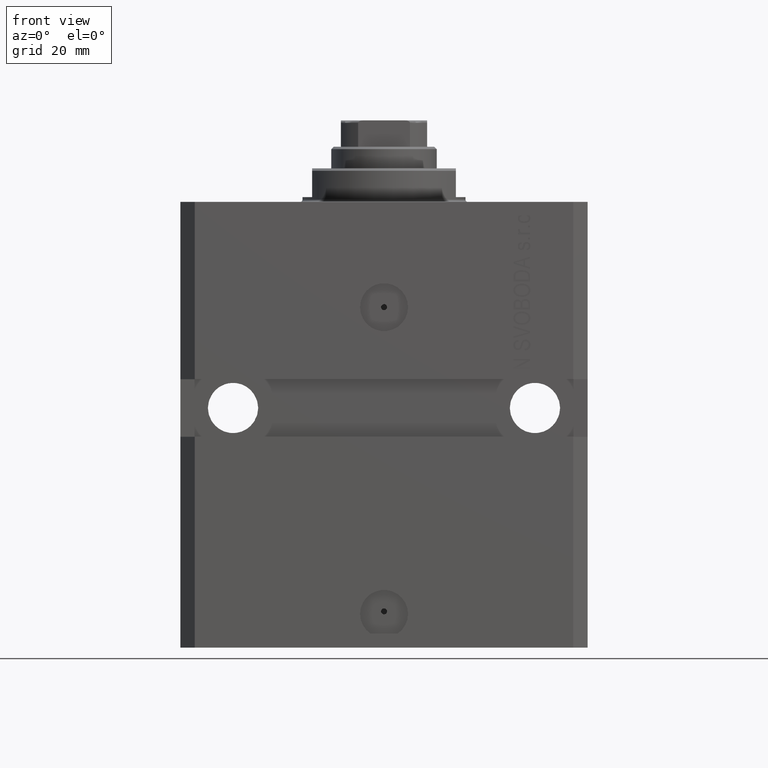
[diagram: clean part render]
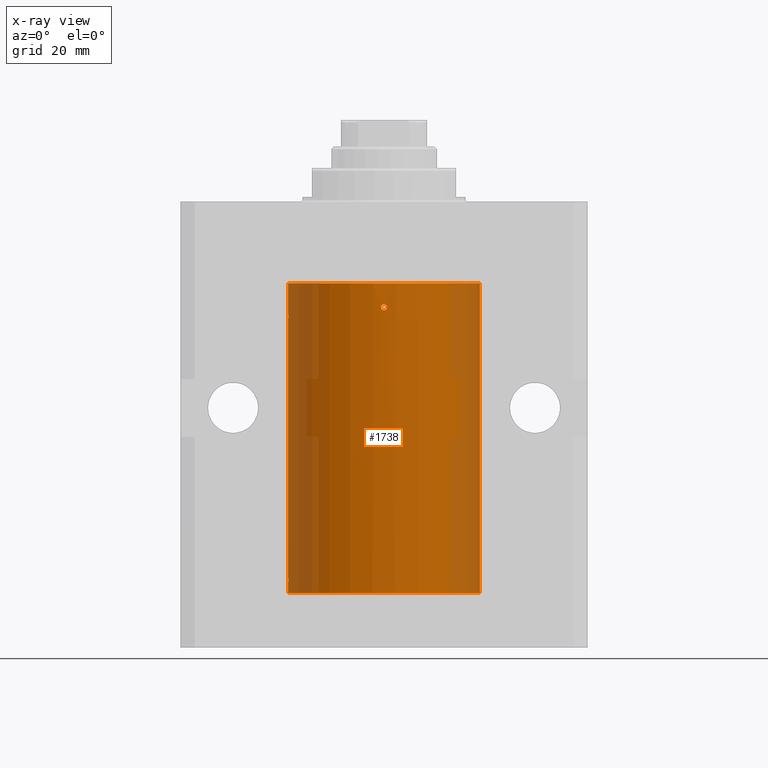
[diagram: x-ray — body ghosted, one internal face saturated and labeled with its STEP entity id]
A machine part, front view, then the same camera in x-ray: the body is ghosted and one INTERNAL B-rep face — a face not visible from any outside direction — is saturated and labeled: STEP entity #1738.
In plain terms, the highlighted cylindrical surface (partial cylindrical patch) has radius 20 mm, axis along (0, 0, 1).
Its self-contained STEP definition (entity closure, byte-faithful):
#353 = CARTESIAN_POINT ( 'NONE',  ( -0.6250000000033326675, -19.99023198964924219, -21.99999999999967315 ) ) ;
#1021 = EDGE_CURVE ( 'NONE', #21552, #28758, #17352, .T. ) ;
#1320 = CARTESIAN_POINT ( 'NONE',  ( 0.3265143537867915002, -19.99766736494331809, -21.44267231150418240 ) ) ;
#1738 = ADVANCED_FACE ( 'NONE', ( #40496, #2637 ), #16449, .F. ) ;
#1808 = DIRECTION ( 'NONE',  ( 1.000000000000000000, 0.000000000000000000, 0.000000000000000000 ) ) ;
#2523 = EDGE_CURVE ( 'NONE', #37911, #32984, #6993, .T. ) ;
#2637 = FACE_OUTER_BOUND ( 'NONE', #18495, .T. ) ;
#3057 = CARTESIAN_POINT ( 'NONE',  ( -19.99023630310506761, -0.6248620367829604838, -79.16538138329534036 ) ) ;
#3276 = CARTESIAN_POINT ( 'NONE',  ( -19.99257639367449357, -0.5569510432580352388, -79.32709448625169557 ) ) ;
#3592 = CARTESIAN_POINT ( 'NONE',  ( -20.00000000000000000, 2.449293598294706513E-15, -81.59999999999999432 ) ) ;
#4896 = VERTEX_POINT ( 'NONE', #8143 ) ;
#4953 = CARTESIAN_POINT ( 'NONE',  ( 0.5459793025363884889, -19.99257092108152634, -21.68496684531850249 ) ) ;
#5174 = CARTESIAN_POINT ( 'NONE',  ( -0.6249999999998574474, -19.99023198964934878, -21.83683113816865529 ) ) ;
#5308 = CARTESIAN_POINT ( 'NONE',  ( -19.99023630310506761, -0.6248620367829522682, -24.16538138329532259 ) ) ;
#5633 = CIRCLE ( 'NONE', #40389, 20.00000000000000000 ) ;
#6017 = CARTESIAN_POINT ( 'NONE',  ( -20.00000000000000000, -0.1651542110816439091, -78.37500000000001421 ) ) ;
#6050 = VECTOR ( 'NONE', #28290, 1000.000000000000000 ) ;
#6236 = CARTESIAN_POINT ( 'NONE',  ( -19.99767054355995555, -0.3263099029014857599, -79.55741108240768256 ) ) ;
#6271 = AXIS2_PLACEMENT_3D ( 'NONE', #36282, #40575, #1808 ) ;
#6993 = LINE ( 'NONE', #3592, #6050 ) ;
#7695 = CIRCLE ( 'NONE', #6271, 20.00000000000000000 ) ;
#8143 = CARTESIAN_POINT ( 'NONE',  ( -20.00000000000000000, 2.449293598294706513E-15, -17.00000000000000000 ) ) ;
#8641 = AXIS2_PLACEMENT_3D ( 'NONE', #23033, #16220, #36878 ) ;
#9702 = ORIENTED_EDGE ( 'NONE', *, *, #28779, .T. ) ;
#9876 = CARTESIAN_POINT ( 'NONE',  ( -0.6250000000001382228, -19.99023198964934167, -22.16313189841578080 ) ) ;
#10091 = EDGE_CURVE ( 'NONE', #35683, #4896, #12004, .T. ) ;
#10100 = CARTESIAN_POINT ( 'NONE',  ( -0.5574110886242996665, -19.99256263711735215, -22.32630989244538711 ) ) ;
#10129 = EDGE_CURVE ( 'NONE', #37911, #32339, #7695, .T. ) ;
#10706 = EDGE_CURVE ( 'NONE', #32984, #22352, #36727, .T. ) ;
#11163 = CARTESIAN_POINT ( 'NONE',  ( -20.00000000000000000, -2.867584836844214272E-15, -23.37500000000000000 ) ) ;
#11276 = VERTEX_POINT ( 'NONE', #25842 ) ;
#11803 = DIRECTION ( 'NONE',  ( 1.000000000000000000, 0.000000000000000000, 0.000000000000000000 ) ) ;
#12004 = LINE ( 'NONE', #43747, #41698 ) ;
#12120 = CARTESIAN_POINT ( 'NONE',  ( -20.00000000000000000, -1.124177324826063808E-14, -78.37500000000000000 ) ) ;
#12414 = CARTESIAN_POINT ( 'NONE',  ( -0.1628481006860607039, -20.00000180872260813, -21.37494212087287337 ) ) ;
#12545 = CARTESIAN_POINT ( 'NONE',  ( -20.00000000000010303, 3.580159278407742946E-13, -24.62500000000332889 ) ) ;
#12801 = CARTESIAN_POINT ( 'NONE',  ( -20.00000000000000355, -0.1631318982819177366, -79.62500000000015632 ) ) ;
#12996 = LINE ( 'NONE', #35161, #13647 ) ;
#13647 = VECTOR ( 'NONE', #42153, 1000.000000000000000 ) ;
#14160 = CARTESIAN_POINT ( 'NONE',  ( -0.1653813832397391104, -19.99999568866902067, -22.62486203736067125 ) ) ;
#15133 = CARTESIAN_POINT ( 'NONE',  ( -0.6250000000033326675, -19.99023198964924219, -21.99999999999967315 ) ) ;
#15291 = ORIENTED_EDGE ( 'NONE', *, *, #1021, .T. ) ;
#16220 = DIRECTION ( 'NONE',  ( -0.000000000000000000, -0.000000000000000000, 1.000000000000000000 ) ) ;
#16428 = CARTESIAN_POINT ( 'NONE',  ( 20.00000000000000000, 0.000000000000000000, -81.59999999999999432 ) ) ;
#16449 = CYLINDRICAL_SURFACE ( 'NONE', #8641, 20.00000000000000000 ) ;
#16616 = ORIENTED_EDGE ( 'NONE', *, *, #24021, .T. ) ;
#16667 = CARTESIAN_POINT ( 'NONE',  ( 0.6250000000000026645, -19.99023198964934522, -22.00000000000000000 ) ) ;
#17345 = CARTESIAN_POINT ( 'NONE',  ( 0.5570899181683264256, -19.99257333899569744, -22.32695694742785619 ) ) ;
#17352 = B_SPLINE_CURVE_WITH_KNOTS ( 'NONE', 3,
 ( #36227, #26007, #29188, #4953, #18760, #1320, #36009, #12414, #32603, #19431, #5174, #15133 ),
 .UNSPECIFIED., .F., .F.,
 ( 4, 2, 2, 2, 2, 4 ),
 ( 0.000000000000000000, 0.0002442693132668051579, 0.0004885386265336103158, 0.0009770772530672282210, 0.001465615879600846126, 0.001954154506134463815 ),
 .UNSPECIFIED. ) ;
#17938 = EDGE_LOOP ( 'NONE', ( #15291, #9702 ) ) ;
#18495 = EDGE_LOOP ( 'NONE', ( #39089, #25052, #21468, #38520, #16616, #36666, #40004, #32702 ) ) ;
#18760 = CARTESIAN_POINT ( 'NONE',  ( 0.4995363768272698679, -19.99384383563509360, -21.61563220462100432 ) ) ;
#19431 = CARTESIAN_POINT ( 'NONE',  ( -0.5585582113630487289, -19.99253968778482360, -21.67461956847272830 ) ) ;
#20279 = CARTESIAN_POINT ( 'NONE',  ( -20.00000000000000000, -1.124177324826063808E-14, -78.37500000000000000 ) ) ;
#21468 = ORIENTED_EDGE ( 'NONE', *, *, #10706, .T. ) ;
#21552 = VERTEX_POINT ( 'NONE', #25441 ) ;
#22352 = VERTEX_POINT ( 'NONE', #12120 ) ;
#22747 = CARTESIAN_POINT ( 'NONE',  ( -19.99767054355995555, -0.3263099029014763230, -24.55741108240767190 ) ) ;
#23033 = CARTESIAN_POINT ( 'NONE',  ( 0.000000000000000000, 0.000000000000000000, -81.59999999999999432 ) ) ;
#23926 = CARTESIAN_POINT ( 'NONE',  ( 0.3261666526553446133, -19.99767369487616264, -22.55755299038902706 ) ) ;
#24021 = EDGE_CURVE ( 'NONE', #25255, #35683, #26436, .T. ) ;
#24602 = CARTESIAN_POINT ( 'NONE',  ( -0.3270944962368909081, -19.99765679051705902, -22.55695103748945129 ) ) ;
#24864 = VECTOR ( 'NONE', #33466, 1000.000000000000000 ) ;
#25052 = ORIENTED_EDGE ( 'NONE', *, *, #2523, .T. ) ;
#25255 = VERTEX_POINT ( 'NONE', #32865 ) ;
#25441 = CARTESIAN_POINT ( 'NONE',  ( 0.6250000000000026645, -19.99023198964934522, -22.00000000000000000 ) ) ;
#25509 = CARTESIAN_POINT ( 'NONE',  ( 20.00000000000000000, 0.000000000000000000, -81.59999999999999432 ) ) ;
#25842 = CARTESIAN_POINT ( 'NONE',  ( 20.00000000000000000, 0.000000000000000000, -17.00000000000000000 ) ) ;
#26007 = CARTESIAN_POINT ( 'NONE',  ( 0.6250000000000028866, -19.99023198964935233, -21.91740418326171280 ) ) ;
#26258 = EDGE_CURVE ( 'NONE', #4896, #11276, #5633, .T. ) ;
#26436 = B_SPLINE_CURVE_WITH_KNOTS ( 'NONE', 3,
 ( #12545, #39979, #22747, #26838, #5308, #33423, #29329, #39755, #29786, #33200 ),
 .UNSPECIFIED., .F., .F.,
 ( 4, 2, 2, 2, 4 ),
 ( 0.001954154509844215938, 0.002442582466643772668, 0.002931010423443329831, 0.003419438380242886995, 0.003907866337042443725 ),
 .UNSPECIFIED. ) ;
#26838 = CARTESIAN_POINT ( 'NONE',  ( -19.99257639367449357, -0.5569510432580226933, -24.32709448625169557 ) ) ;
#26870 = CARTESIAN_POINT ( 'NONE',  ( -19.99255948581289033, -0.5575529953197770894, -78.67383335671266309 ) ) ;
#28006 = CARTESIAN_POINT ( 'NONE',  ( 0.6250000000000026645, -19.99023198964934522, -22.16515421183406076 ) ) ;
#28214 = EDGE_CURVE ( 'NONE', #22352, #25255, #12996, .T. ) ;
#28290 = DIRECTION ( 'NONE',  ( -0.000000000000000000, -0.000000000000000000, 1.000000000000000000 ) ) ;
#28758 = VERTEX_POINT ( 'NONE', #31416 ) ;
#28779 = EDGE_CURVE ( 'NONE', #28758, #21552, #39080, .T. ) ;
#29188 = CARTESIAN_POINT ( 'NONE',  ( 0.6087363597162602780, -19.99075850180857117, -21.83635608258754957 ) ) ;
#29329 = CARTESIAN_POINT ( 'NONE',  ( -19.99255948581289744, -0.5575529953197640998, -23.67383335671266309 ) ) ;
#29786 = CARTESIAN_POINT ( 'NONE',  ( -20.00000000000000000, -0.1651542110816374143, -23.37500000000000355 ) ) ;
#30738 = CARTESIAN_POINT ( 'NONE',  ( 0.1643369734423495987, -20.00000429769607280, -22.62513752632251851 ) ) ;
#31416 = CARTESIAN_POINT ( 'NONE',  ( -0.6250000000033326675, -19.99023198964924219, -21.99999999999967315 ) ) ;
#31462 = CARTESIAN_POINT ( 'NONE',  ( -20.00000000000000000, 2.449293598294706513E-15, -81.59999999999999432 ) ) ;
#31787 = DIRECTION ( 'NONE',  ( 0.000000000000000000, 0.000000000000000000, 1.000000000000000000 ) ) ;
#31998 = CARTESIAN_POINT ( 'NONE',  ( -20.00000000000010303, 3.580159286679549072E-13, -79.62500000000332534 ) ) ;
#32339 = VERTEX_POINT ( 'NONE', #25509 ) ;
#32603 = CARTESIAN_POINT ( 'NONE',  ( -0.3251162203622516289, -19.99769811469285230, -21.44128795971509405 ) ) ;
#32702 = ORIENTED_EDGE ( 'NONE', *, *, #44474, .F. ) ;
#32865 = CARTESIAN_POINT ( 'NONE',  ( -20.00000000000010303, 3.580159278407742946E-13, -24.62500000000332889 ) ) ;
#32984 = VERTEX_POINT ( 'NONE', #31998 ) ;
#33200 = CARTESIAN_POINT ( 'NONE',  ( -20.00000000000000000, -2.867584836844214272E-15, -23.37500000000000000 ) ) ;
#33423 = CARTESIAN_POINT ( 'NONE',  ( -19.99022768983530440, -0.6251375268965866372, -23.83566303088218064 ) ) ;
#33466 = DIRECTION ( 'NONE',  ( -0.000000000000000000, -0.000000000000000000, 1.000000000000000000 ) ) ;
#33676 = CARTESIAN_POINT ( 'NONE',  ( -19.99022768983530440, -0.6251375268966040677, -78.83566303088220195 ) ) ;
#35161 = CARTESIAN_POINT ( 'NONE',  ( -20.00000000000000000, 2.449293598294706513E-15, -81.59999999999999432 ) ) ;
#35683 = VERTEX_POINT ( 'NONE', #11163 ) ;
#36009 = CARTESIAN_POINT ( 'NONE',  ( 0.1632920704146597346, -19.99999818881353164, -21.37505795797077823 ) ) ;
#36227 = CARTESIAN_POINT ( 'NONE',  ( 0.6250000000000026645, -19.99023198964934522, -22.00000000000000000 ) ) ;
#36282 = CARTESIAN_POINT ( 'NONE',  ( 0.000000000000000000, 0.000000000000000000, -81.59999999999999432 ) ) ;
#36666 = ORIENTED_EDGE ( 'NONE', *, *, #10091, .T. ) ;
#36727 = B_SPLINE_CURVE_WITH_KNOTS ( 'NONE', 3,
 ( #43863, #12801, #6236, #3276, #3057, #33676, #26870, #40472, #6017, #20279 ),
 .UNSPECIFIED., .F., .F.,
 ( 4, 2, 2, 2, 4 ),
 ( 0.001954154509844221576, 0.002442582466643782209, 0.002931010423443342408, 0.003419438380242903041, 0.003907866337042463674 ),
 .UNSPECIFIED. ) ;
#36878 = DIRECTION ( 'NONE',  ( 1.000000000000000000, 0.000000000000000000, 0.000000000000000000 ) ) ;
#37911 = VERTEX_POINT ( 'NONE', #31462 ) ;
#38520 = ORIENTED_EDGE ( 'NONE', *, *, #28214, .T. ) ;
#39080 = B_SPLINE_CURVE_WITH_KNOTS ( 'NONE', 3,
 ( #353, #9876, #10100, #24602, #14160, #30738, #23926, #17345, #28006, #16667 ),
 .UNSPECIFIED., .F., .F.,
 ( 4, 2, 2, 2, 4 ),
 ( 0.001954154506134463815, 0.002442582461700956980, 0.002931010417267450145, 0.003419438372833943311, 0.003907866328400436476 ),
 .UNSPECIFIED. ) ;
#39089 = ORIENTED_EDGE ( 'NONE', *, *, #10129, .F. ) ;
#39755 = CARTESIAN_POINT ( 'NONE',  ( -19.99765984516761819, -0.3269569594423944459, -23.44291008943298849 ) ) ;
#39979 = CARTESIAN_POINT ( 'NONE',  ( -20.00000000000000355, -0.1631318982819147112, -24.62500000000014566 ) ) ;
#40004 = ORIENTED_EDGE ( 'NONE', *, *, #26258, .T. ) ;
#40119 = DIRECTION ( 'NONE',  ( -0.000000000000000000, -0.000000000000000000, 1.000000000000000000 ) ) ;
#40389 = AXIS2_PLACEMENT_3D ( 'NONE', #42864, #31787, #11803 ) ;
#40472 = CARTESIAN_POINT ( 'NONE',  ( -19.99765984516762174, -0.3269569594424049930, -78.44291008943298493 ) ) ;
#40496 = FACE_BOUND ( 'NONE', #17938, .T. ) ;
#40575 = DIRECTION ( 'NONE',  ( 0.000000000000000000, 0.000000000000000000, 1.000000000000000000 ) ) ;
#41698 = VECTOR ( 'NONE', #40119, 1000.000000000000000 ) ;
#42153 = DIRECTION ( 'NONE',  ( -0.000000000000000000, -0.000000000000000000, 1.000000000000000000 ) ) ;
#42864 = CARTESIAN_POINT ( 'NONE',  ( 0.000000000000000000, 0.000000000000000000, -17.00000000000000000 ) ) ;
#43747 = CARTESIAN_POINT ( 'NONE',  ( -20.00000000000000000, 2.449293598294706513E-15, -81.59999999999999432 ) ) ;
#43863 = CARTESIAN_POINT ( 'NONE',  ( -20.00000000000010303, 3.580159286679549072E-13, -79.62500000000332534 ) ) ;
#43875 = LINE ( 'NONE', #16428, #24864 ) ;
#44474 = EDGE_CURVE ( 'NONE', #32339, #11276, #43875, .T. ) ;